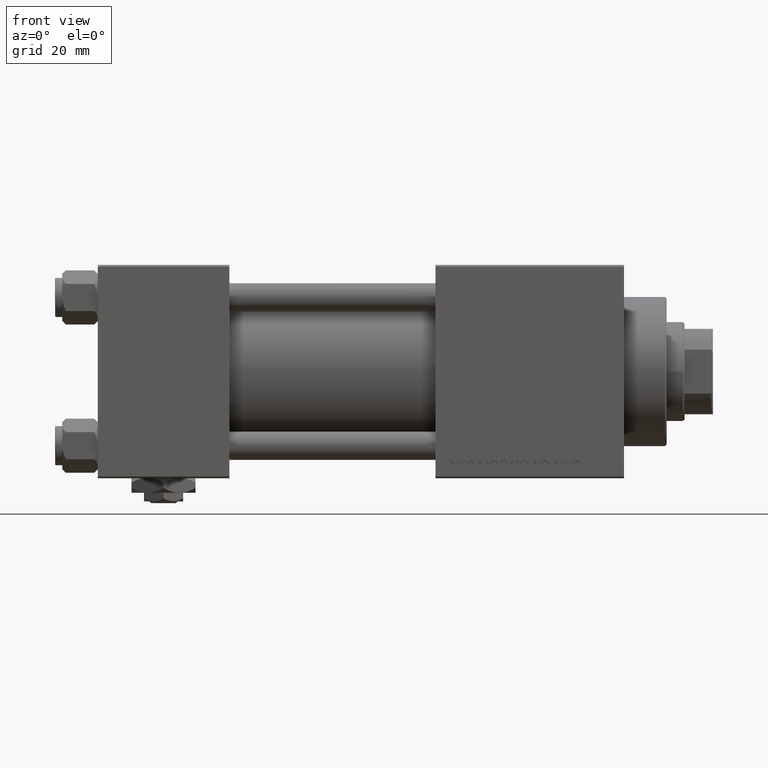
[diagram: clean part render]
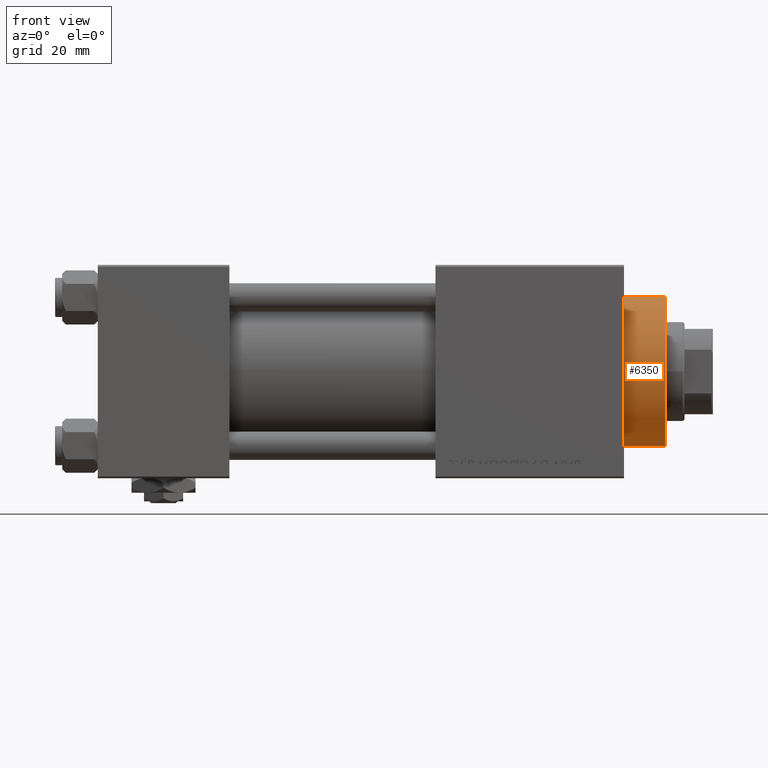
[diagram: same view with one face highlighted and labeled with its STEP entity id]
A machine part, front view. The second image highlights one B-rep face of the part: STEP entity #6350.
In plain terms, the highlighted cylindrical surface (partial cylindrical patch) has radius 21 mm, axis along (-1, -0, -0).
Its self-contained STEP definition (entity closure, byte-faithful):
#2336 = AXIS2_PLACEMENT_3D ( 'NONE', #31765, #39668, #4295 ) ;
#3519 = CYLINDRICAL_SURFACE ( 'NONE', #2336, 21.00000000000000000 ) ;
#4295 = DIRECTION ( 'NONE',  ( -1.000000000000000000, 0.000000000000000000, 0.000000000000000000 ) ) ;
#5309 = DIRECTION ( 'NONE',  ( 1.000000000000000000, 0.000000000000000000, 0.000000000000000000 ) ) ;
#5715 = CARTESIAN_POINT ( 'NONE',  ( -20.96385542168674831, -1.231570484631384410, 32.20000000000000284 ) ) ;
#6350 = ADVANCED_FACE ( 'NONE', ( #15389 ), #3519, .T. ) ;
#7455 = CARTESIAN_POINT ( 'NONE',  ( 20.96385542168674831, -1.231570484631392626, 28.69999999999999929 ) ) ;
#9418 = LINE ( 'NONE', #5715, #16388 ) ;
#10763 = ORIENTED_EDGE ( 'NONE', *, *, #43708, .T. ) ;
#15389 = FACE_OUTER_BOUND ( 'NONE', #21950, .T. ) ;
#16388 = VECTOR ( 'NONE', #21553, 1000.000000000000000 ) ;
#21553 = DIRECTION ( 'NONE',  ( 0.000000000000000000, 0.000000000000000000, -1.000000000000000000 ) ) ;
#21950 = EDGE_LOOP ( 'NONE', ( #28161, #41608, #10763, #37390 ) ) ;
#22323 = CARTESIAN_POINT ( 'NONE',  ( 20.96385542168674831, -1.231570484631379969, 40.19999999999998863 ) ) ;
#24180 = CIRCLE ( 'NONE', #46027, 21.00000000000000000 ) ;
#26593 = AXIS2_PLACEMENT_3D ( 'NONE', #45566, #40574, #28968 ) ;
#28161 = ORIENTED_EDGE ( 'NONE', *, *, #32153, .T. ) ;
#28802 = EDGE_CURVE ( 'NONE', #43554, #32263, #36693, .T. ) ;
#28968 = DIRECTION ( 'NONE',  ( 1.000000000000000000, 0.000000000000000000, 0.000000000000000000 ) ) ;
#29795 = EDGE_CURVE ( 'NONE', #34078, #35829, #9418, .T. ) ;
#31765 = CARTESIAN_POINT ( 'NONE',  ( 0.000000000000000000, 0.000000000000000000, 40.70000000000000284 ) ) ;
#32153 = EDGE_CURVE ( 'NONE', #32263, #34078, #45119, .T. ) ;
#32263 = VERTEX_POINT ( 'NONE', #22323 ) ;
#32379 = VECTOR ( 'NONE', #37218, 1000.000000000000000 ) ;
#33291 = DIRECTION ( 'NONE',  ( 0.000000000000000000, 0.000000000000000000, 1.000000000000000000 ) ) ;
#34078 = VERTEX_POINT ( 'NONE', #40830 ) ;
#35829 = VERTEX_POINT ( 'NONE', #41403 ) ;
#36693 = LINE ( 'NONE', #45394, #32379 ) ;
#37218 = DIRECTION ( 'NONE',  ( -0.000000000000000000, -0.000000000000000000, 1.000000000000000000 ) ) ;
#37390 = ORIENTED_EDGE ( 'NONE', *, *, #28802, .T. ) ;
#39668 = DIRECTION ( 'NONE',  ( -0.000000000000000000, -0.000000000000000000, -1.000000000000000000 ) ) ;
#40574 = DIRECTION ( 'NONE',  ( 0.000000000000000000, 0.000000000000000000, -1.000000000000000000 ) ) ;
#40830 = CARTESIAN_POINT ( 'NONE',  ( -20.96385542168674831, -1.231570484631384188, 40.19999999999998863 ) ) ;
#41403 = CARTESIAN_POINT ( 'NONE',  ( -20.96385542168674831, -1.231570484631387741, 28.69999999999999929 ) ) ;
#41608 = ORIENTED_EDGE ( 'NONE', *, *, #29795, .T. ) ;
#43554 = VERTEX_POINT ( 'NONE', #7455 ) ;
#43708 = EDGE_CURVE ( 'NONE', #35829, #43554, #24180, .T. ) ;
#45119 = CIRCLE ( 'NONE', #26593, 21.00000000000000000 ) ;
#45394 = CARTESIAN_POINT ( 'NONE',  ( 20.96385542168674831, -1.231570484631384410, 32.20000000000000284 ) ) ;
#45566 = CARTESIAN_POINT ( 'NONE',  ( 0.000000000000000000, 0.000000000000000000, 40.19999999999998863 ) ) ;
#46027 = AXIS2_PLACEMENT_3D ( 'NONE', #49639, #33291, #5309 ) ;
#49639 = CARTESIAN_POINT ( 'NONE',  ( 0.000000000000000000, 0.000000000000000000, 28.69999999999999929 ) ) ;